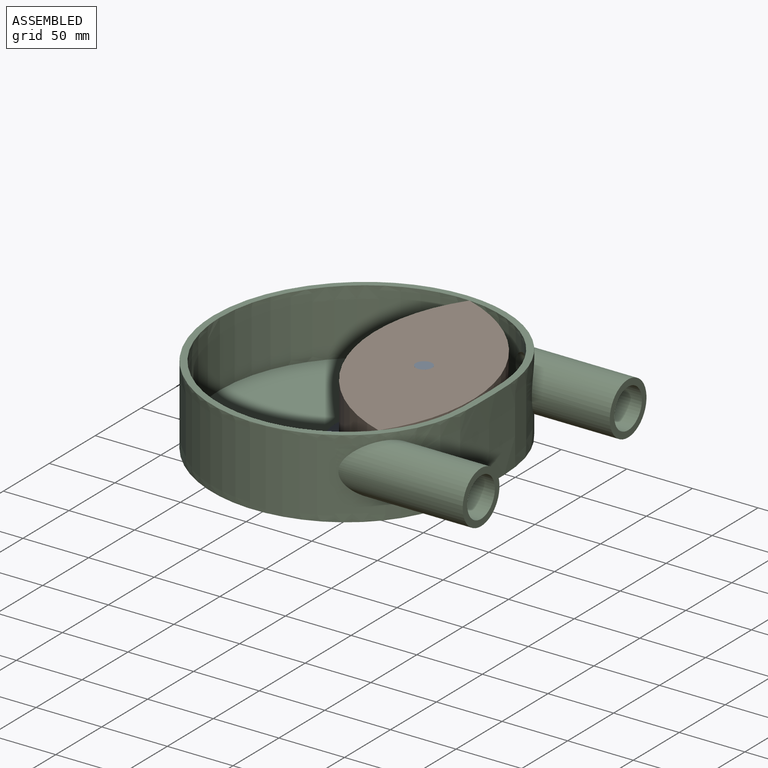
[diagram: assembled view]
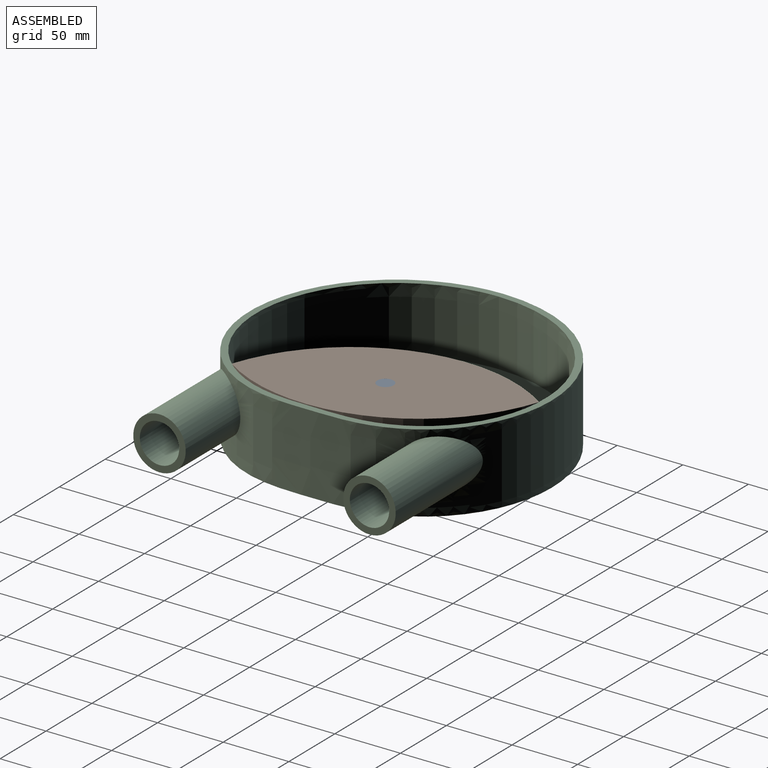
[diagram: assembled view, second angle]
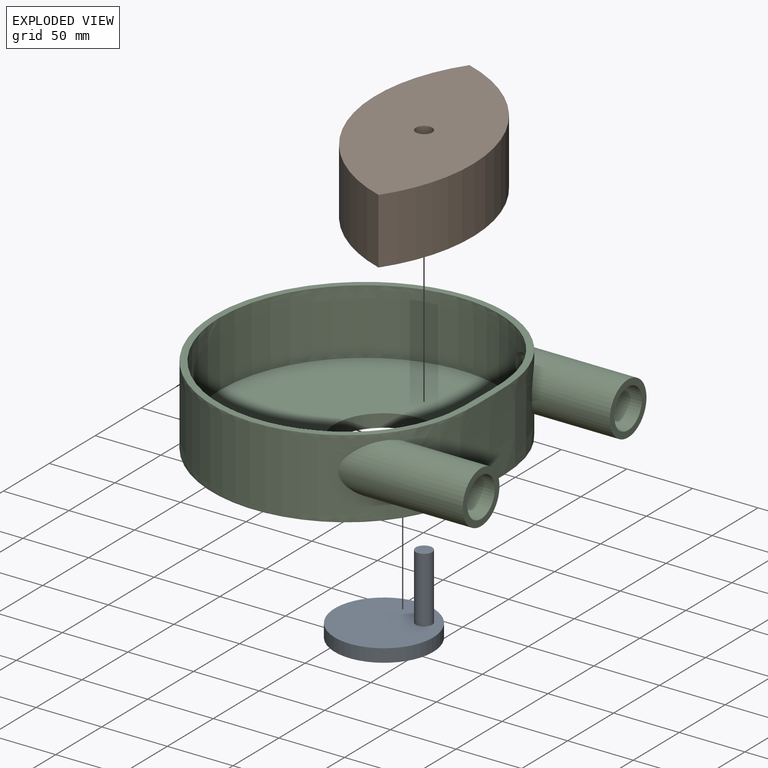
[diagram: exploded view]
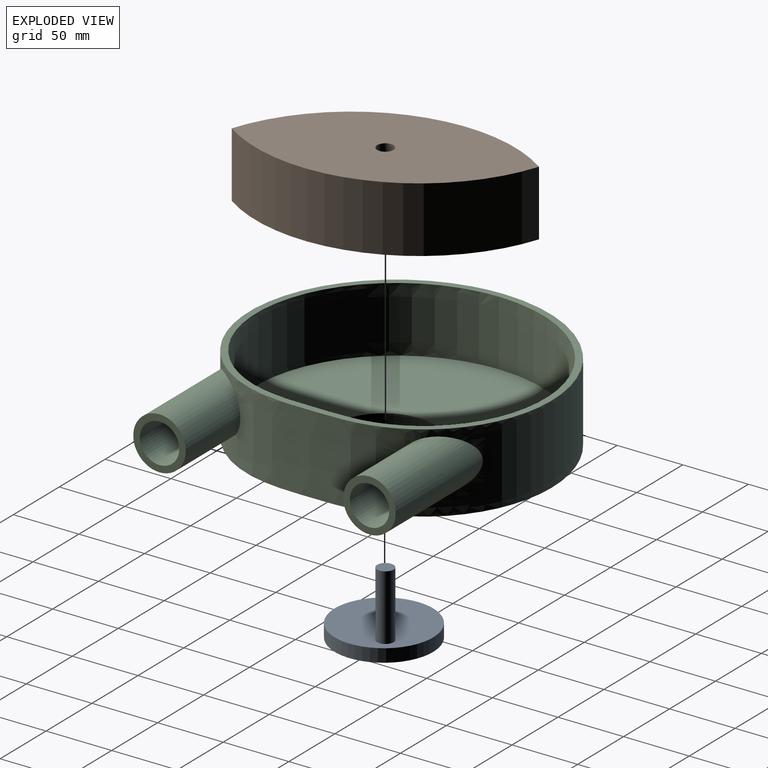
[diagram: exploded view, second angle]
ASSEMBLY  parts=3 mates=2
PART A: 5 faces, bbox 75x75x60 mm
  f0: plane 75x75mm, normal (0,0,1), area 4295.1mm2, adj f1,f4
  f1: cylinder r=37.5mm len=75mm, axis (0,0,1), area 2356.2mm2, adj f0,f2
  f2: plane 75x75mm, normal (0,0,-1), area 4417.9mm2, adj f1
  f3: plane 12.5x12.5mm, normal (0,0,1), area 122.7mm2, adj f4
  f4: cylinder r=6.25mm len=50mm, axis (0,0,-1), area 1963.5mm2, adj f0,f3
PART B: 5 faces, bbox 200x100x50 mm
  f0: cylinder r=125mm len=200mm, axis (0,0,-1), area 11591.2mm2, adj f1,f2,f3
  f1: cylinder r=125mm len=200mm, axis (0,0,-1), area 11591.2mm2, adj f0,f2,f3
  f2: plane 200x100mm, normal (0,0,1), area 13855.3mm2, adj f0,f1,f4
  f3: plane 200x100mm, normal (0,0,-1), area 13855.3mm2, adj f0,f1,f4
  f4: cylinder r=6.25mm len=50mm, axis (0,0,-1), area 1963.5mm2, adj f2,f3
PART C: 12 faces, bbox 260.1x230.5x60.1 mm
  f0: extruded ~230.09x210mm, area 38647.2mm2, adj f2,f3,f8,f10
  f1: extruded ~220.09x200mm, area 31452.5mm2, adj f3,f4,f6,f7
  f2: plane 230.21x210.01mm, normal (0,0,-1), area 34335.7mm2, adj f0,f5
  f3: plane 230.54x210.12mm, normal (0,0,1), area 3415.4mm2, adj f0,f1
  f4: plane 221.41x200.85mm, normal (0,0,1), area 30921.3mm2, adj f1,f5
  f5: cylinder r=37.5mm len=75mm, axis (0,0,1), area 2356.2mm2, adj f2,f4
  f6: cylinder r=15mm len=96.25mm, axis (1,0,0), area 7556.3mm2, adj f1,f9
  f7: cylinder r=15mm len=96.25mm, axis (1,0,0), area 7556mm2, adj f1,f11
  f8: cylinder r=20mm len=94.79mm, axis (1,0,0), area 9351.9mm2, adj f0,f9
  f9: plane 40x40mm, normal (1,0,0), area 549.8mm2, adj f6,f8
  f10: cylinder r=20mm len=94.79mm, axis (1,0,0), area 9351.5mm2, adj f0,f11
  f11: plane 40x40mm, normal (1,0,0), area 549.8mm2, adj f7,f10
PLACE A rot(axis=(0,0,-1),143deg) t=(25.06,0,10)mm
PLACE B rot(axis=(0,0,1),108.5deg) t=(37.08,38.76,10)mm
PLACE C t=(25.06,0,10)mm
MATE revolute B.f4 <-> A.f4  axis (0,0,1) through (45.02,15.05,60)mm
MATE revolute A.f1 <-> C.f5  axis (0,0,-1) through (25.06,0,0)mm
